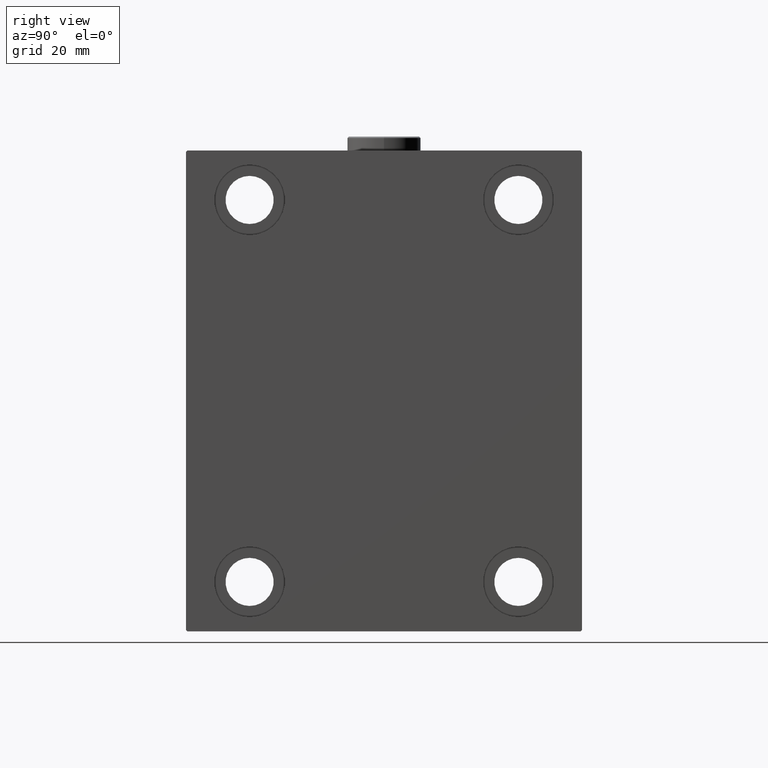
[diagram: clean part render]
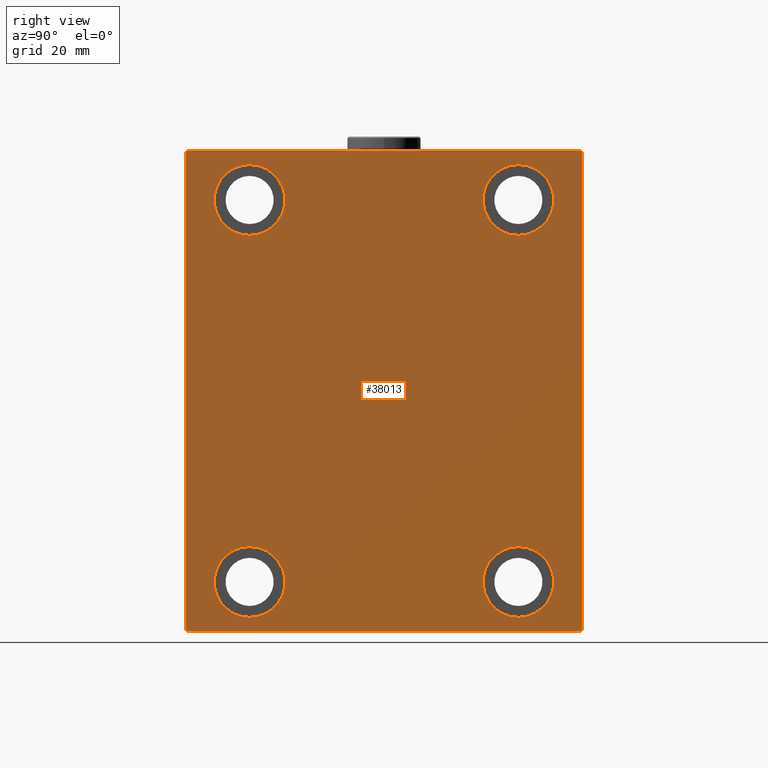
[diagram: same view with one face highlighted and labeled with its STEP entity id]
A machine part, right view. The second image highlights one B-rep face of the part: STEP entity #38013.
In plain terms, the highlighted planar face has unit normal (1, 0, 0).
Its self-contained STEP definition (entity closure, byte-faithful):
#89 = EDGE_CURVE ( 'NONE', #7366, #27134, #44227, .T. ) ;
#671 = CARTESIAN_POINT ( 'NONE',  ( 115.0000000000000000, 47.50000000000000711, -55.00000000000000711 ) ) ;
#1030 = ORIENTED_EDGE ( 'NONE', *, *, #26242, .T. ) ;
#1593 = DIRECTION ( 'NONE',  ( -1.000000000000000000, -0.000000000000000000, -0.000000000000000000 ) ) ;
#1666 = DIRECTION ( 'NONE',  ( -0.000000000000000000, 0.7071067811865376918, 0.7071067811865574537 ) ) ;
#2022 = CIRCLE ( 'NONE', #7106, 12.50000000000001066 ) ;
#2384 = DIRECTION ( 'NONE',  ( -0.000000000000000000, 0.7071067811865573427, -0.7071067811865378028 ) ) ;
#2534 = ORIENTED_EDGE ( 'NONE', *, *, #17651, .T. ) ;
#2686 = CARTESIAN_POINT ( 'NONE',  ( 115.0000000000000000, -77.25000000000001421, 77.25000000000001421 ) ) ;
#3942 = AXIS2_PLACEMENT_3D ( 'NONE', #37634, #6606, #41741 ) ;
#4373 = DIRECTION ( 'NONE',  ( -1.000000000000000000, -0.000000000000000000, -0.000000000000000000 ) ) ;
#4418 = DIRECTION ( 'NONE',  ( 0.000000000000000000, 0.000000000000000000, 1.000000000000000000 ) ) ;
#4596 = VECTOR ( 'NONE', #38529, 1000.000000000000000 ) ;
#4629 = ORIENTED_EDGE ( 'NONE', *, *, #20531, .T. ) ;
#5361 = AXIS2_PLACEMENT_3D ( 'NONE', #19840, #1593, #12085 ) ;
#5434 = CARTESIAN_POINT ( 'NONE',  ( 115.0000000000000000, -69.49999999999998579, -85.00000000000002842 ) ) ;
#6458 = AXIS2_PLACEMENT_3D ( 'NONE', #41200, #16795, #9933 ) ;
#6606 = DIRECTION ( 'NONE',  ( -1.000000000000000000, -0.000000000000000000, -0.000000000000000000 ) ) ;
#6844 = CIRCLE ( 'NONE', #5361, 12.50000000000001066 ) ;
#6857 = VERTEX_POINT ( 'NONE', #6988 ) ;
#6988 = CARTESIAN_POINT ( 'NONE',  ( 115.0000000000000000, 47.50000000000000711, -80.00000000000000000 ) ) ;
#7106 = AXIS2_PLACEMENT_3D ( 'NONE', #18067, #4373, #18298 ) ;
#7366 = VERTEX_POINT ( 'NONE', #33872 ) ;
#7382 = CARTESIAN_POINT ( 'NONE',  ( 115.0000000000000000, -47.49999999999997868, 55.00000000000000000 ) ) ;
#7391 = CARTESIAN_POINT ( 'NONE',  ( 115.0000000000000000, 69.50000000000001421, 85.00000000000000000 ) ) ;
#7631 = VERTEX_POINT ( 'NONE', #7382 ) ;
#7773 = VECTOR ( 'NONE', #33517, 1000.000000000000000 ) ;
#8113 = CIRCLE ( 'NONE', #37256, 12.49999999999999645 ) ;
#8143 = DIRECTION ( 'NONE',  ( -0.000000000000000000, -0.7071067811865573427, 0.7071067811865378028 ) ) ;
#8821 = EDGE_LOOP ( 'NONE', ( #4629, #20378, #15424, #25998, #2534, #16445, #39803, #14421 ) ) ;
#9155 = DIRECTION ( 'NONE',  ( -1.000000000000000000, -0.000000000000000000, -0.000000000000000000 ) ) ;
#9207 = CARTESIAN_POINT ( 'NONE',  ( 115.0000000000000000, -69.50000000000001421, 84.99999999999998579 ) ) ;
#9288 = DIRECTION ( 'NONE',  ( 0.000000000000000000, 0.000000000000000000, -1.000000000000000000 ) ) ;
#9933 = DIRECTION ( 'NONE',  ( 0.000000000000000000, 0.000000000000000000, 1.000000000000000000 ) ) ;
#9997 = LINE ( 'NONE', #16617, #11827 ) ;
#10031 = CARTESIAN_POINT ( 'NONE',  ( 115.0000000000000000, 70.00000000000002842, -84.50000000000004263 ) ) ;
#10357 = ORIENTED_EDGE ( 'NONE', *, *, #26416, .T. ) ;
#10667 = DIRECTION ( 'NONE',  ( 0.000000000000000000, 0.000000000000000000, 1.000000000000000000 ) ) ;
#10953 = EDGE_CURVE ( 'NONE', #43107, #30647, #42258, .T. ) ;
#11170 = EDGE_CURVE ( 'NONE', #17643, #6857, #21873, .T. ) ;
#11416 = ORIENTED_EDGE ( 'NONE', *, *, #18068, .T. ) ;
#11827 = VECTOR ( 'NONE', #37840, 1000.000000000000000 ) ;
#11987 = CARTESIAN_POINT ( 'NONE',  ( 115.0000000000000000, -47.49999999999997868, 67.50000000000000000 ) ) ;
#12085 = DIRECTION ( 'NONE',  ( 0.000000000000000000, 0.000000000000000000, 1.000000000000000000 ) ) ;
#12132 = CARTESIAN_POINT ( 'NONE',  ( 115.0000000000000000, -47.49999999999999289, -67.50000000000000000 ) ) ;
#12608 = CARTESIAN_POINT ( 'NONE',  ( 115.0000000000000000, 47.50000000000000711, 80.00000000000001421 ) ) ;
#12868 = DIRECTION ( 'NONE',  ( -1.000000000000000000, -0.000000000000000000, -0.000000000000000000 ) ) ;
#12872 = CARTESIAN_POINT ( 'NONE',  ( 115.0000000000000000, -77.24999999999907629, -77.25000000000120792 ) ) ;
#13160 = VECTOR ( 'NONE', #25098, 1000.000000000000000 ) ;
#13881 = VERTEX_POINT ( 'NONE', #5434 ) ;
#14421 = ORIENTED_EDGE ( 'NONE', *, *, #40569, .T. ) ;
#15424 = ORIENTED_EDGE ( 'NONE', *, *, #89, .T. ) ;
#16369 = PLANE ( 'NONE',  #26033 ) ;
#16445 = ORIENTED_EDGE ( 'NONE', *, *, #39294, .T. ) ;
#16617 = CARTESIAN_POINT ( 'NONE',  ( 115.0000000000000000, 70.00000000000001421, 85.00000000000000000 ) ) ;
#16795 = DIRECTION ( 'NONE',  ( -1.000000000000000000, -0.000000000000000000, -0.000000000000000000 ) ) ;
#16947 = CARTESIAN_POINT ( 'NONE',  ( 115.0000000000000000, -47.49999999999999289, -80.00000000000000000 ) ) ;
#17270 = VECTOR ( 'NONE', #8143, 1000.000000000000000 ) ;
#17643 = VERTEX_POINT ( 'NONE', #671 ) ;
#17651 = EDGE_CURVE ( 'NONE', #13881, #30876, #21899, .T. ) ;
#17901 = VERTEX_POINT ( 'NONE', #29554 ) ;
#18067 = CARTESIAN_POINT ( 'NONE',  ( 115.0000000000000000, 47.50000000000000711, 67.50000000000000000 ) ) ;
#18068 = EDGE_CURVE ( 'NONE', #38247, #38554, #23389, .T. ) ;
#18298 = DIRECTION ( 'NONE',  ( 0.000000000000000000, 0.000000000000000000, 1.000000000000000000 ) ) ;
#18338 = DIRECTION ( 'NONE',  ( -1.000000000000000000, -0.000000000000000000, -0.000000000000000000 ) ) ;
#18784 = EDGE_CURVE ( 'NONE', #6857, #17643, #8113, .T. ) ;
#19336 = DIRECTION ( 'NONE',  ( 1.000000000000000000, 0.000000000000000000, 0.000000000000000000 ) ) ;
#19358 = VERTEX_POINT ( 'NONE', #10031 ) ;
#19432 = DIRECTION ( 'NONE',  ( 0.000000000000000000, 0.000000000000000000, 1.000000000000000000 ) ) ;
#19686 = LINE ( 'NONE', #40008, #34817 ) ;
#19840 = CARTESIAN_POINT ( 'NONE',  ( 115.0000000000000000, -47.49999999999997868, 67.50000000000000000 ) ) ;
#20378 = ORIENTED_EDGE ( 'NONE', *, *, #43785, .T. ) ;
#20531 = EDGE_CURVE ( 'NONE', #29703, #35046, #9997, .T. ) ;
#21378 = CARTESIAN_POINT ( 'NONE',  ( 115.0000000000000000, 47.50000000000000711, 55.00000000000000000 ) ) ;
#21873 = CIRCLE ( 'NONE', #6458, 12.49999999999999645 ) ;
#21887 = EDGE_LOOP ( 'NONE', ( #22945, #37515 ) ) ;
#21899 = LINE ( 'NONE', #39468, #13160 ) ;
#22726 = CARTESIAN_POINT ( 'NONE',  ( 115.0000000000000000, 77.24999999999907629, 77.25000000000120792 ) ) ;
#22945 = ORIENTED_EDGE ( 'NONE', *, *, #18784, .T. ) ;
#22982 = FACE_OUTER_BOUND ( 'NONE', #8821, .T. ) ;
#23154 = CARTESIAN_POINT ( 'NONE',  ( 115.0000000000000000, -47.49999999999999289, -55.00000000000000711 ) ) ;
#23389 = CIRCLE ( 'NONE', #35062, 12.49999999999999645 ) ;
#24069 = EDGE_CURVE ( 'NONE', #19358, #17901, #32125, .T. ) ;
#24746 = CARTESIAN_POINT ( 'NONE',  ( 115.0000000000000000, -69.99999999999998579, -84.50000000000004263 ) ) ;
#25098 = DIRECTION ( 'NONE',  ( 0.000000000000000000, 1.000000000000000000, 9.912705577010325549E-17 ) ) ;
#25604 = CARTESIAN_POINT ( 'NONE',  ( 115.0000000000000000, 69.50000000000007105, -85.00000000000001421 ) ) ;
#25771 = VERTEX_POINT ( 'NONE', #43381 ) ;
#25998 = ORIENTED_EDGE ( 'NONE', *, *, #31312, .T. ) ;
#26033 = AXIS2_PLACEMENT_3D ( 'NONE', #29615, #19336, #9288 ) ;
#26242 = EDGE_CURVE ( 'NONE', #25771, #7631, #6844, .T. ) ;
#26416 = EDGE_CURVE ( 'NONE', #38554, #38247, #32356, .T. ) ;
#26573 = DIRECTION ( 'NONE',  ( 0.000000000000000000, 0.000000000000000000, 1.000000000000000000 ) ) ;
#26950 = ORIENTED_EDGE ( 'NONE', *, *, #37429, .T. ) ;
#27134 = VERTEX_POINT ( 'NONE', #24746 ) ;
#28666 = EDGE_LOOP ( 'NONE', ( #10357, #11416 ) ) ;
#29251 = EDGE_LOOP ( 'NONE', ( #36191, #31877 ) ) ;
#29554 = CARTESIAN_POINT ( 'NONE',  ( 115.0000000000000000, 70.00000000000001421, 84.50000000000001421 ) ) ;
#29615 = CARTESIAN_POINT ( 'NONE',  ( 115.0000000000000000, 0.000000000000000000, 0.000000000000000000 ) ) ;
#29703 = VERTEX_POINT ( 'NONE', #7391 ) ;
#30305 = LINE ( 'NONE', #2686, #39181 ) ;
#30647 = VERTEX_POINT ( 'NONE', #12608 ) ;
#30876 = VERTEX_POINT ( 'NONE', #25604 ) ;
#31312 = EDGE_CURVE ( 'NONE', #27134, #13881, #44127, .T. ) ;
#31851 = AXIS2_PLACEMENT_3D ( 'NONE', #11987, #12868, #26573 ) ;
#31877 = ORIENTED_EDGE ( 'NONE', *, *, #43342, .T. ) ;
#32125 = LINE ( 'NONE', #45133, #4596 ) ;
#32356 = CIRCLE ( 'NONE', #3942, 12.49999999999999645 ) ;
#32784 = LINE ( 'NONE', #22726, #17270 ) ;
#32886 = EDGE_LOOP ( 'NONE', ( #26950, #1030 ) ) ;
#33070 = VECTOR ( 'NONE', #2384, 1000.000000000000000 ) ;
#33258 = DIRECTION ( 'NONE',  ( 0.000000000000000000, -0.7071067811865474617, -0.7071067811865474617 ) ) ;
#33517 = DIRECTION ( 'NONE',  ( 0.000000000000000000, 0.000000000000000000, -1.000000000000000000 ) ) ;
#33705 = FACE_BOUND ( 'NONE', #29251, .T. ) ;
#33872 = CARTESIAN_POINT ( 'NONE',  ( 115.0000000000000000, -69.99999999999998579, 84.50000000000001421 ) ) ;
#34817 = VECTOR ( 'NONE', #1666, 999.9999999999998863 ) ;
#35046 = VERTEX_POINT ( 'NONE', #9207 ) ;
#35062 = AXIS2_PLACEMENT_3D ( 'NONE', #12132, #9155, #19432 ) ;
#35899 = CARTESIAN_POINT ( 'NONE',  ( 115.0000000000000000, 47.50000000000000711, -67.50000000000000000 ) ) ;
#36191 = ORIENTED_EDGE ( 'NONE', *, *, #10953, .T. ) ;
#37134 = FACE_BOUND ( 'NONE', #28666, .T. ) ;
#37256 = AXIS2_PLACEMENT_3D ( 'NONE', #35899, #18338, #4418 ) ;
#37429 = EDGE_CURVE ( 'NONE', #7631, #25771, #44203, .T. ) ;
#37515 = ORIENTED_EDGE ( 'NONE', *, *, #11170, .T. ) ;
#37634 = CARTESIAN_POINT ( 'NONE',  ( 115.0000000000000000, -47.49999999999999289, -67.50000000000000000 ) ) ;
#37840 = DIRECTION ( 'NONE',  ( 0.000000000000000000, -1.000000000000000000, -9.912705577010325549E-17 ) ) ;
#38013 = ADVANCED_FACE ( 'NONE', ( #41015, #44190, #33705, #37134, #22982 ), #16369, .T. ) ;
#38247 = VERTEX_POINT ( 'NONE', #23154 ) ;
#38290 = DIRECTION ( 'NONE',  ( -1.000000000000000000, -0.000000000000000000, -0.000000000000000000 ) ) ;
#38529 = DIRECTION ( 'NONE',  ( 0.000000000000000000, -8.163404592832031500E-17, 1.000000000000000000 ) ) ;
#38554 = VERTEX_POINT ( 'NONE', #16947 ) ;
#39181 = VECTOR ( 'NONE', #33258, 1000.000000000000114 ) ;
#39294 = EDGE_CURVE ( 'NONE', #30876, #19358, #19686, .T. ) ;
#39468 = CARTESIAN_POINT ( 'NONE',  ( 115.0000000000000000, -69.99999999999998579, -85.00000000000002842 ) ) ;
#39803 = ORIENTED_EDGE ( 'NONE', *, *, #24069, .T. ) ;
#40008 = CARTESIAN_POINT ( 'NONE',  ( 115.0000000000000000, 77.25000000000100897, -77.24999999999886313 ) ) ;
#40145 = CARTESIAN_POINT ( 'NONE',  ( 115.0000000000000000, -69.99999999999998579, 84.99999999999998579 ) ) ;
#40569 = EDGE_CURVE ( 'NONE', #17901, #29703, #32784, .T. ) ;
#41015 = FACE_BOUND ( 'NONE', #21887, .T. ) ;
#41200 = CARTESIAN_POINT ( 'NONE',  ( 115.0000000000000000, 47.50000000000000711, -67.50000000000000000 ) ) ;
#41451 = AXIS2_PLACEMENT_3D ( 'NONE', #45124, #38290, #10667 ) ;
#41741 = DIRECTION ( 'NONE',  ( 0.000000000000000000, 0.000000000000000000, 1.000000000000000000 ) ) ;
#42258 = CIRCLE ( 'NONE', #41451, 12.50000000000001066 ) ;
#43107 = VERTEX_POINT ( 'NONE', #21378 ) ;
#43342 = EDGE_CURVE ( 'NONE', #30647, #43107, #2022, .T. ) ;
#43381 = CARTESIAN_POINT ( 'NONE',  ( 115.0000000000000000, -47.49999999999997868, 80.00000000000001421 ) ) ;
#43785 = EDGE_CURVE ( 'NONE', #35046, #7366, #30305, .T. ) ;
#44127 = LINE ( 'NONE', #12872, #33070 ) ;
#44190 = FACE_BOUND ( 'NONE', #32886, .T. ) ;
#44203 = CIRCLE ( 'NONE', #31851, 12.50000000000001066 ) ;
#44227 = LINE ( 'NONE', #40145, #7773 ) ;
#45124 = CARTESIAN_POINT ( 'NONE',  ( 115.0000000000000000, 47.50000000000000711, 67.50000000000000000 ) ) ;
#45133 = CARTESIAN_POINT ( 'NONE',  ( 115.0000000000000000, 70.00000000000002842, -85.00000000000001421 ) ) ;